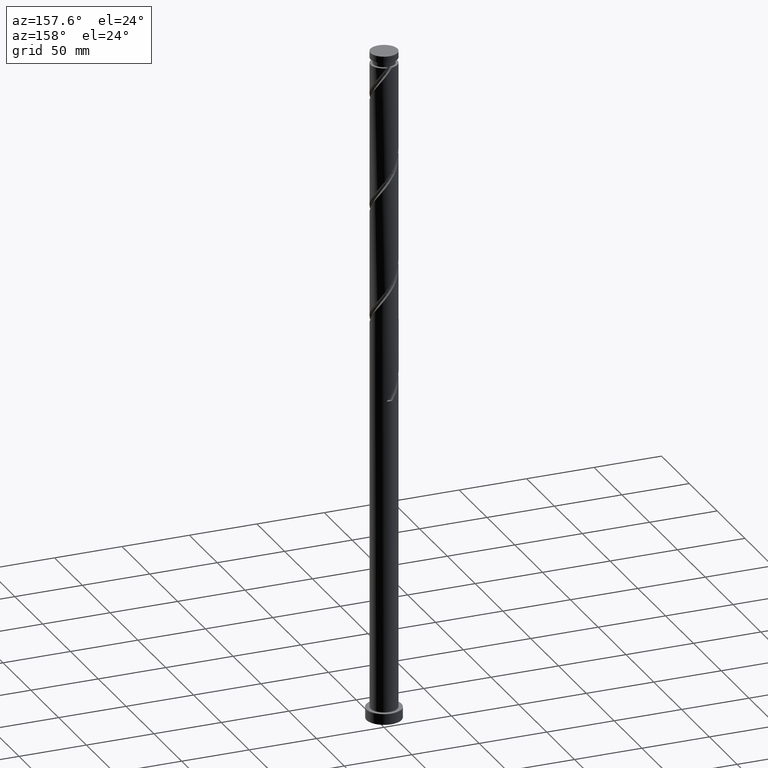
[diagram: clean part render]
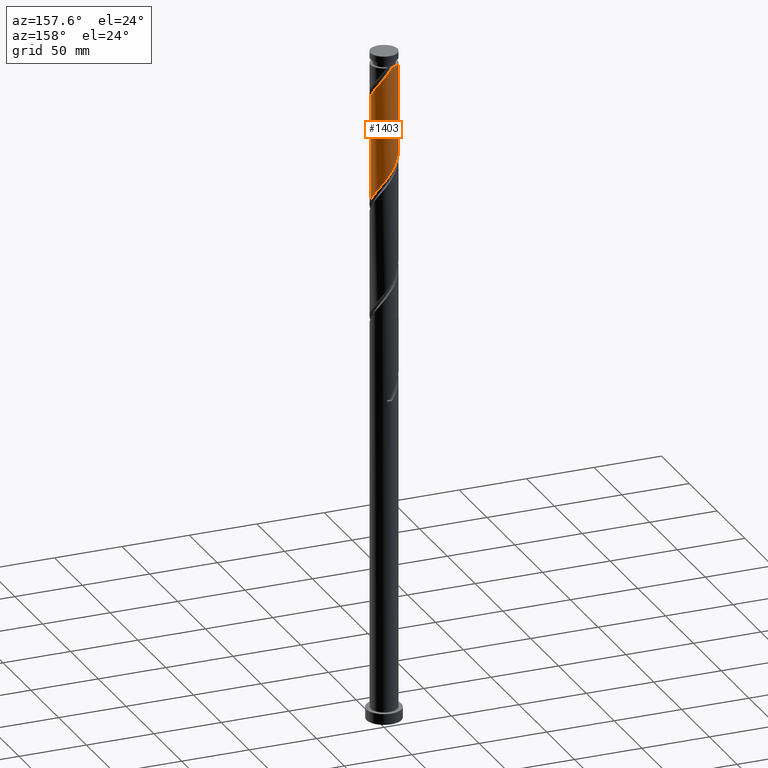
[diagram: same view with one face highlighted and labeled with its STEP entity id]
A machine part, auxiliary view. The second image highlights one B-rep face of the part: STEP entity #1403.
In plain terms, the highlighted cylindrical surface (edge-blend (fillet) strip) has radius 10 mm, axis along (-0, -0, -1).
Its self-contained STEP definition (entity closure, byte-faithful):
#58 = DIRECTION ( 'NONE',  ( -0.000000000000000000, -0.000000000000000000, -1.000000000000000000 ) ) ;
#68 = CARTESIAN_POINT ( 'NONE',  ( -9.995995418006760502, 1.024759121313037813, 429.9869246761556383 ) ) ;
#87 = CARTESIAN_POINT ( 'NONE',  ( 1.024759121313038035, 9.995995418006760502, 409.1535913428222102 ) ) ;
#96 = CARTESIAN_POINT ( 'NONE',  ( -4.701421434343242112, 8.880692098604946239, 416.9660913428223807 ) ) ;
#135 = VECTOR ( 'NONE', #525, 1000.000000000000000 ) ;
#148 = LINE ( 'NONE', #1117, #578 ) ;
#160 = VERTEX_POINT ( 'NONE', #846 ) ;
#185 = CARTESIAN_POINT ( 'NONE',  ( 8.336771183575201860, 5.522521727681130699, 397.4348413428221534 ) ) ;
#194 = DIRECTION ( 'NONE',  ( -0.000000000000000000, -0.000000000000000000, -1.000000000000000000 ) ) ;
#229 = CARTESIAN_POINT ( 'NONE',  ( 0.03985290924256662537, 9.999920586965922453, 410.4556746761555246 ) ) ;
#248 = CARTESIAN_POINT ( 'NONE',  ( -7.742040770971249763, 6.405533572946541021, 422.1744246761555246 ) ) ;
#369 = CARTESIAN_POINT ( 'NONE',  ( 0.000000000000000000, 0.000000000000000000, 491.1848413428221534 ) ) ;
#381 = CARTESIAN_POINT ( 'NONE',  ( -2.878547858533169634, 9.627253911664558572, 414.3619246761555814 ) ) ;
#388 = CARTESIAN_POINT ( 'NONE',  ( 1.911800580680548922, 9.815549833794836587, 485.9765080094889527 ) ) ;
#398 = CARTESIAN_POINT ( 'NONE',  ( 5.588794693675227521, 8.292489003426394945, 402.6431746761555814 ) ) ;
#401 = AXIS2_PLACEMENT_3D ( 'NONE', #1321, #58, #1170 ) ;
#408 = CARTESIAN_POINT ( 'NONE',  ( 7.742040770971267527, 6.405533572946549903, 476.8619246761555246 ) ) ;
#409 = CARTESIAN_POINT ( 'NONE',  ( -6.343622021019019286, 7.792850268545455705, 419.5702580094888390 ) ) ;
#414 = CARTESIAN_POINT ( 'NONE',  ( 4.701421434343258099, 8.880692098604956897, 482.0702580094888958 ) ) ;
#426 = CARTESIAN_POINT ( 'NONE',  ( 10.00000000000001599, -5.218723838112370066E-16, 467.6946443648253080 ) ) ;
#472 = CARTESIAN_POINT ( 'NONE',  ( 7.099191920745997031, 7.042831395995134969, 400.0390080094888390 ) ) ;
#481 = CARTESIAN_POINT ( 'NONE',  ( 9.815549833794825929, 1.911800580680539596, 392.2265080094888958 ) ) ;
#525 = DIRECTION ( 'NONE',  ( -0.000000000000000000, -0.000000000000000000, -1.000000000000000000 ) ) ;
#544 = CARTESIAN_POINT ( 'NONE',  ( -3.789984646438206539, 9.253973005134753294, 415.6640080094888958 ) ) ;
#554 = CARTESIAN_POINT ( 'NONE',  ( -9.604004581993240919, 2.955190627113458923, 427.3827580094888958 ) ) ;
#565 = CARTESIAN_POINT ( 'NONE',  ( 1.989974874213250366, 9.800000000000002487, 407.8515080094888958 ) ) ;
#578 = VECTOR ( 'NONE', #1479, 1000.000000000000000 ) ;
#581 = EDGE_CURVE ( 'NONE', #1389, #160, #1595, .T. ) ;
#596 = VERTEX_POINT ( 'NONE', #1488 ) ;
#645 = ORIENTED_EDGE ( 'NONE', *, *, #745, .F. ) ;
#685 = LINE ( 'NONE', #1349, #135 ) ;
#713 = CARTESIAN_POINT ( 'NONE',  ( -8.292489003426396721, 5.588794693675221303, 423.4765080094888390 ) ) ;
#740 = CARTESIAN_POINT ( 'NONE',  ( 9.999920586965943770, 0.03985290924256063017, 467.7473413428221534 ) ) ;
#745 = EDGE_CURVE ( 'NONE', #1389, #596, #685, .T. ) ;
#760 = CARTESIAN_POINT ( 'NONE',  ( 9.995995418006774713, 1.024759121313039811, 469.0494246761556383 ) ) ;
#806 = CARTESIAN_POINT ( 'NONE',  ( 10.00000000000000178, 0.9647981492898172196, 390.9510184262350094 ) ) ;
#818 = CARTESIAN_POINT ( 'NONE',  ( 8.880692098604946239, 4.701421434343244776, 396.1327580094888958 ) ) ;
#823 = FACE_OUTER_BOUND ( 'NONE', #1092, .T. ) ;
#829 = CARTESIAN_POINT ( 'NONE',  ( 9.627253911664558572, 2.878547858533169634, 393.5285913428222671 ) ) ;
#846 = CARTESIAN_POINT ( 'NONE',  ( -1.989974874213240152, 9.799999999999945643, 491.1848413428220397 ) ) ;
#861 = CARTESIAN_POINT ( 'NONE',  ( -9.999999999999998224, 0.01992653374262575230, 431.3153514329683276 ) ) ;
#879 = CARTESIAN_POINT ( 'NONE',  ( -1.989974874213240152, 9.799999999999945643, 491.1848413428220397 ) ) ;
#880 = CARTESIAN_POINT ( 'NONE',  ( -9.800000000000002487, 1.989974874213248590, 428.6848413428222102 ) ) ;
#886 = CARTESIAN_POINT ( 'NONE',  ( 9.223470908937407842, 3.863623220758685139, 472.9556746761554678 ) ) ;
#979 = CARTESIAN_POINT ( 'NONE',  ( 9.999999999999998224, 8.834553925947433027E-15, 389.6750383208189987 ) ) ;
#1017 = CARTESIAN_POINT ( 'NONE',  ( -9.999999999999998224, 6.072357951632222932E-15, 431.3417049874856843 ) ) ;
#1047 = CARTESIAN_POINT ( 'NONE',  ( 9.604004581993264011, 2.955190627113456703, 471.6535913428222671 ) ) ;
#1055 = CARTESIAN_POINT ( 'NONE',  ( -1.911800580680538042, 9.815549833794827705, 413.0598413428222102 ) ) ;
#1063 = CARTESIAN_POINT ( 'NONE',  ( -0.03985290924256019995, 9.999920586965943770, 488.5806746761555246 ) ) ;
#1072 = CARTESIAN_POINT ( 'NONE',  ( 10.00000000000001954, 0.01992653374264003949, 467.7209979193424942 ) ) ;
#1077 = VERTEX_POINT ( 'NONE', #1102 ) ;
#1092 = EDGE_LOOP ( 'NONE', ( #1522, #2093, #1883, #645, #1962 ) ) ;
#1102 = CARTESIAN_POINT ( 'NONE',  ( 10.00000000000001776, -5.218723838112370066E-16, 467.6946443648253080 ) ) ;
#1117 = CARTESIAN_POINT ( 'NONE',  ( 10.00000000000000178, 1.224646799147353454E-15, 500.0000000000000000 ) ) ;
#1170 = DIRECTION ( 'NONE',  ( -1.000000000000000000, 0.000000000000000000, 0.000000000000000000 ) ) ;
#1174 = DIRECTION ( 'NONE',  ( -1.000000000000000000, 0.000000000000000000, 0.000000000000000000 ) ) ;
#1179 =( BOUNDED_CURVE ( )  B_SPLINE_CURVE ( 2, ( #426, #1072, #740, #760, #1869, #1047, #886, #1240, #1337, #408, #1699, #1825, #1540, #414, #1891, #1553, #388, #1385, #1063, #1376, #879 ),
 .UNSPECIFIED., .F., .T. ) 
 B_SPLINE_CURVE_WITH_KNOTS ( ( 3, 2, 2, 2, 2, 2, 2, 2, 2, 2, 3 ),
 ( 0.6795286902180874833, 0.6796875000000000000, 0.6875000000000000000, 0.6953125000000000000, 0.7031250000000000000, 0.7109375000000000000, 0.7187500000000000000, 0.7265625000000000000, 0.7343750000000000000, 0.7421875000000000000, 0.7500000000000000000 ),
 .UNSPECIFIED. ) 
 CURVE ( )  GEOMETRIC_REPRESENTATION_ITEM ( )  RATIONAL_B_SPLINE_CURVE ( ( 0.9089165573359372363, 0.9090019243628418844, 0.9090909090909334855, 0.9047133878838395926, 0.9090909090909334855, 0.9047133878838395926, 0.9090909090909334855, 0.9047133878838395926, 0.9090909090909334855, 0.9047133878838395926, 0.9090909090909334855, 0.9047133878838395926, 0.9090909090909334855, 0.9047133878838395926, 0.9090909090909334855, 0.9047133878838395926, 0.9090909090909334855, 0.9047133878838395926, 0.9090909090909334855, 0.9047133878838395926, 0.9090909090909334855 ) ) 
 REPRESENTATION_ITEM ( '' )  );
#1206 = CARTESIAN_POINT ( 'NONE',  ( -7.042831395995134969, 7.099191920745997919, 420.8723413428221534 ) ) ;
#1214 = CARTESIAN_POINT ( 'NONE',  ( 3.863623220758683807, 9.223470908937388302, 405.2473413428222671 ) ) ;
#1240 = CARTESIAN_POINT ( 'NONE',  ( 8.842937235881560554, 4.772055814403907803, 474.2577580094889527 ) ) ;
#1321 = CARTESIAN_POINT ( 'NONE',  ( 0.000000000000000000, 0.000000000000000000, 500.0000000000000000 ) ) ;
#1337 = CARTESIAN_POINT ( 'NONE',  ( 8.292489003426409155, 5.588794693675231073, 475.5598413428222102 ) ) ;
#1349 = CARTESIAN_POINT ( 'NONE',  ( -10.00000000000000178, 0.000000000000000000, 500.0000000000000000 ) ) ;
#1376 = CARTESIAN_POINT ( 'NONE',  ( -1.024759121313039367, 9.995995418006774713, 489.8827580094889527 ) ) ;
#1385 = CARTESIAN_POINT ( 'NONE',  ( 0.9450533028279091141, 10.00384575592510927, 487.2785913428222671 ) ) ;
#1389 = VERTEX_POINT ( 'NONE', #1474 ) ;
#1403 = ADVANCED_FACE ( 'NONE', ( #823 ), #1503, .T. ) ;
#1466 = VERTEX_POINT ( 'NONE', #979 ) ;
#1474 = CARTESIAN_POINT ( 'NONE',  ( -9.999999999999955591, 0.000000000000000000, 491.1848413428221534 ) ) ;
#1479 = DIRECTION ( 'NONE',  ( -0.000000000000000000, -0.000000000000000000, -1.000000000000000000 ) ) ;
#1488 = CARTESIAN_POINT ( 'NONE',  ( -9.999999999999998224, 6.072357951632222932E-15, 431.3417049874856843 ) ) ;
#1503 = CYLINDRICAL_SURFACE ( 'NONE', #401, 10.00000000000000178 ) ;
#1522 = ORIENTED_EDGE ( 'NONE', *, *, #1787, .F. ) ;
#1530 = EDGE_CURVE ( 'NONE', #596, #1466, #1630, .T. ) ;
#1533 = CARTESIAN_POINT ( 'NONE',  ( -9.223470908937390078, 3.863623220758681587, 426.0806746761556383 ) ) ;
#1540 = CARTESIAN_POINT ( 'NONE',  ( 5.522521727681144021, 8.336771183575212518, 480.7681746761554678 ) ) ;
#1553 = CARTESIAN_POINT ( 'NONE',  ( 2.878547858533179848, 9.627253911664571007, 484.6744246761555814 ) ) ;
#1559 = EDGE_CURVE ( 'NONE', #1077, #1466, #148, .T. ) ;
#1595 = CIRCLE ( 'NONE', #1937, 9.999999999999955591 ) ;
#1608 = CARTESIAN_POINT ( 'NONE',  ( 7.792850268545460146, 6.343622021019013957, 398.7369246761555246 ) ) ;
#1630 =( BOUNDED_CURVE ( )  B_SPLINE_CURVE ( 2, ( #1017, #861, #2034, #68, #880, #554, #1533, #1870, #713, #248, #1206, #409, #2006, #96, #544, #381, #1055, #1682, #229, #87, #565, #1707, #1214, #1860, #398, #1700, #472, #1608, #185, #818, #2085, #829, #481, #806, #1961 ),
 .UNSPECIFIED., .F., .T. ) 
 B_SPLINE_CURVE_WITH_KNOTS ( ( 3, 2, 2, 2, 2, 2, 2, 2, 2, 2, 2, 2, 2, 2, 2, 2, 2, 3 ),
 ( 0.4295286902180873168, 0.4296875000000000000, 0.4375000000000000000, 0.4453125000000000000, 0.4531250000000000000, 0.4609375000000000000, 0.4687500000000000000, 0.4765625000000000000, 0.4843750000000000000, 0.4921875000000000000, 0.5000000000000000000, 0.5078125000000000000, 0.5156250000000000000, 0.5234375000000000000, 0.5312500000000000000, 0.5390625000000000000, 0.5468750000000000000, 0.5545286902180871502 ),
 .UNSPECIFIED. ) 
 CURVE ( )  GEOMETRIC_REPRESENTATION_ITEM ( )  RATIONAL_B_SPLINE_CURVE ( ( 0.9089165573359303529, 0.9090019243628351120, 0.9090909090909268242, 0.9047133878838330423, 0.9090909090909268242, 0.9047133878838330423, 0.9090909090909268242, 0.9047133878838330423, 0.9090909090909268242, 0.9047133878838330423, 0.9090909090909268242, 0.9047133878838330423, 0.9090909090909268242, 0.9047133878838330423, 0.9090909090909268242, 0.9047133878838330423, 0.9090909090909268242, 0.9047133878838330423, 0.9090909090909268242, 0.9047133878838330423, 0.9090909090909268242, 0.9047133878838330423, 0.9090909090909268242, 0.9047133878838330423, 0.9090909090909268242, 0.9047133878838330423, 0.9090909090909268242, 0.9047133878838330423, 0.9090909090909268242, 0.9047133878838330423, 0.9090909090909268242, 0.9047133878838330423, 0.9090909090909268242, 0.9048023726119248655, 0.9089165573359302419 ) ) 
 REPRESENTATION_ITEM ( '' )  );
#1682 = CARTESIAN_POINT ( 'NONE',  ( -0.9450533028279046732, 10.00384575592509329, 411.7577580094888390 ) ) ;
#1699 = CARTESIAN_POINT ( 'NONE',  ( 7.042831395995150956, 7.099191920746005025, 478.1640080094888390 ) ) ;
#1700 = CARTESIAN_POINT ( 'NONE',  ( 6.405533572946541909, 7.742040770971249763, 401.3410913428222102 ) ) ;
#1707 = CARTESIAN_POINT ( 'NONE',  ( 2.955190627113456259, 9.604004581993244472, 406.5494246761556951 ) ) ;
#1787 = EDGE_CURVE ( 'NONE', #1077, #160, #1179, .T. ) ;
#1825 = CARTESIAN_POINT ( 'NONE',  ( 6.343622021019031720, 7.792850268545469028, 479.4660913428222671 ) ) ;
#1860 = CARTESIAN_POINT ( 'NONE',  ( 4.772055814403904250, 8.842937235881546343, 403.9452580094889527 ) ) ;
#1869 = CARTESIAN_POINT ( 'NONE',  ( 9.800000000000013145, 1.989974874213247702, 470.3515080094889527 ) ) ;
#1870 = CARTESIAN_POINT ( 'NONE',  ( -8.842937235881546343, 4.772055814403903362, 424.7785913428221534 ) ) ;
#1883 = ORIENTED_EDGE ( 'NONE', *, *, #1530, .F. ) ;
#1891 = CARTESIAN_POINT ( 'NONE',  ( 3.789984646438214089, 9.253973005134763952, 483.3723413428221534 ) ) ;
#1937 = AXIS2_PLACEMENT_3D ( 'NONE', #369, #194, #1174 ) ;
#1961 = CARTESIAN_POINT ( 'NONE',  ( 9.999999999999998224, 8.834553925947433027E-15, 389.6750383208189987 ) ) ;
#1962 = ORIENTED_EDGE ( 'NONE', *, *, #581, .T. ) ;
#2006 = CARTESIAN_POINT ( 'NONE',  ( -5.522521727681131587, 8.336771183575200084, 418.2681746761556383 ) ) ;
#2034 = CARTESIAN_POINT ( 'NONE',  ( -9.999920586965922453, 0.03985290924256724987, 431.2890080094888390 ) ) ;
#2085 = CARTESIAN_POINT ( 'NONE',  ( 9.253973005134753294, 3.789984646438202542, 394.8306746761555814 ) ) ;
#2093 = ORIENTED_EDGE ( 'NONE', *, *, #1559, .T. ) ;